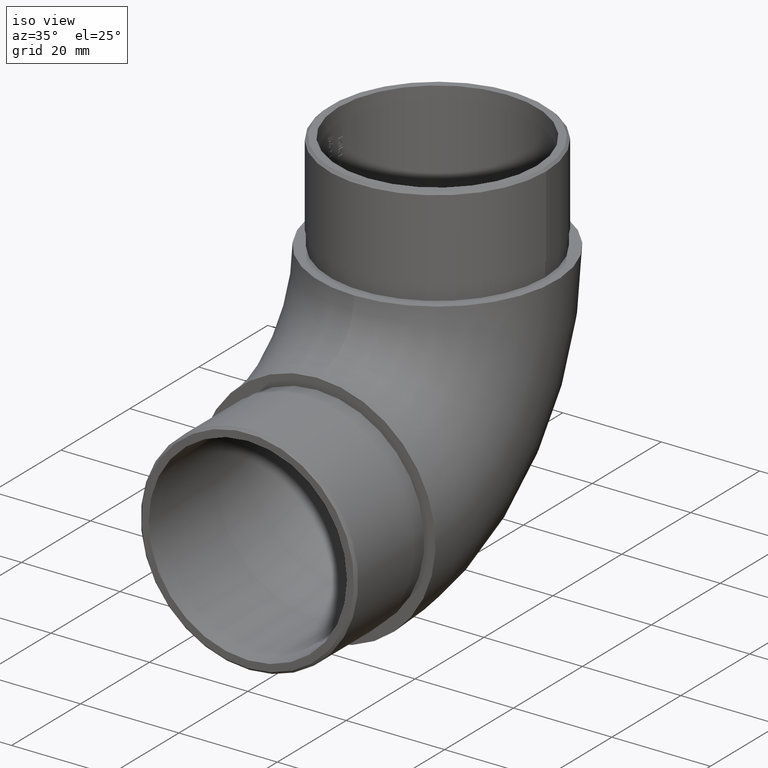
[diagram: clean part render]
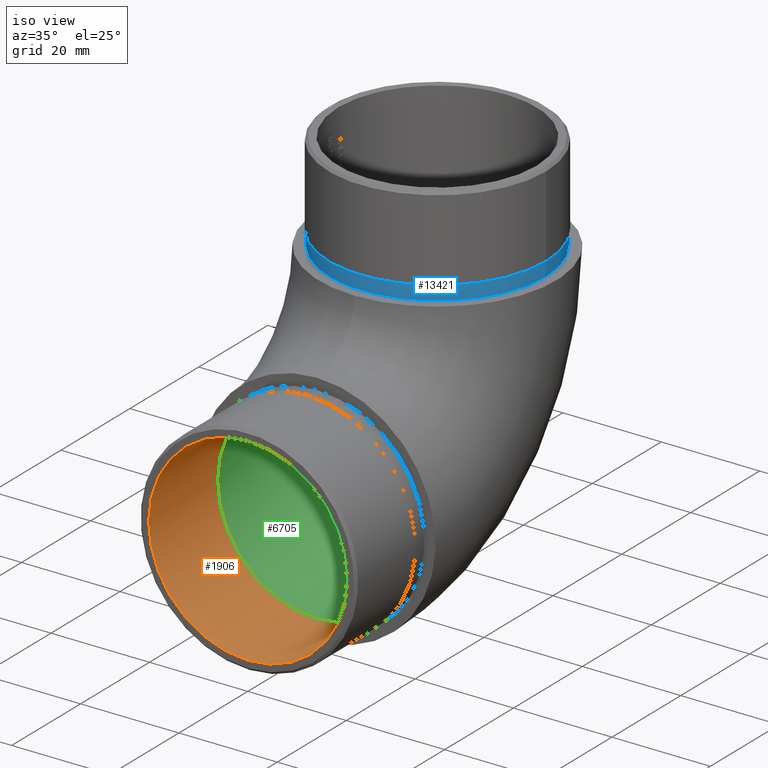
[diagram: same view with three faces highlighted in distinct colors, each labeled with its STEP entity id]
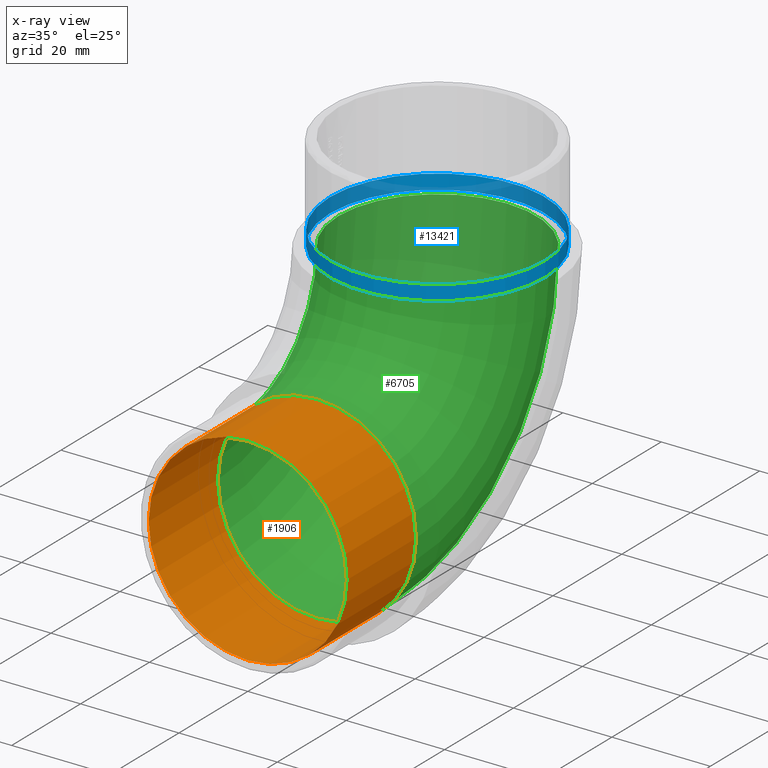
[diagram: x-ray of the same camera — body ghosted, the three highlighted faces saturated]
A machine part, iso view with three faces highlighted in distinct colors.
The next image is the same camera in x-ray (body ghosted, the three faces saturated) — at least one of them is partly hidden behind the body in this view.
Their STEP definitions:

[orange] entity #1906 — the highlighted cylindrical surface (bore or boss wall) has radius 20.15 mm, axis along (-0, 1, -0).
#533 = EDGE_LOOP ( 'NONE', ( #12597 ) ) ;
#1089 = CARTESIAN_POINT ( 'NONE',  ( 0.0000000000000000000, -20.00000000000000000, 24.15000000000000600 ) ) ;
#1906 = ADVANCED_FACE ( 'NONE', ( #12161, #8689 ), #5171, .F. ) ;
#2005 = CARTESIAN_POINT ( 'NONE',  ( 0.0000000000000000000, -6.938893903907228400E-015, 24.15000000000000600 ) ) ;
#2029 = CARTESIAN_POINT ( 'NONE',  ( 0.0000000000000000000, -20.00000000000000000, 4.000000000000003600 ) ) ;
#2417 = DIRECTION ( 'NONE',  ( 0.0000000000000000000, 0.0000000000000000000, 1.000000000000000000 ) ) ;
#2774 = AXIS2_PLACEMENT_3D ( 'NONE', #1089, #4289, #9905 ) ;
#2884 = CIRCLE ( 'NONE', #2774, 20.15000000000000200 ) ;
#4178 = ORIENTED_EDGE ( 'NONE', *, *, #9384, .T. ) ;
#4289 = DIRECTION ( 'NONE',  ( 0.0000000000000000000, -1.000000000000000000, 0.0000000000000000000 ) ) ;
#4378 = AXIS2_PLACEMENT_3D ( 'NONE', #2005, #14238, #9767 ) ;
#4977 = EDGE_CURVE ( 'NONE', #8874, #8874, #2884, .T. ) ;
#5171 = CYLINDRICAL_SURFACE ( 'NONE', #13713, 20.15000000000000200 ) ;
#8185 = VERTEX_POINT ( 'NONE', #8581 ) ;
#8581 = CARTESIAN_POINT ( 'NONE',  ( 0.0000000000000000000, -6.938893903907228400E-015, 44.30000000000000400 ) ) ;
#8689 = FACE_OUTER_BOUND ( 'NONE', #533, .T. ) ;
#8874 = VERTEX_POINT ( 'NONE', #2029 ) ;
#9384 = EDGE_CURVE ( 'NONE', #8185, #8185, #13836, .T. ) ;
#9767 = DIRECTION ( 'NONE',  ( 0.0000000000000000000, 0.0000000000000000000, 1.000000000000000000 ) ) ;
#9905 = DIRECTION ( 'NONE',  ( 0.0000000000000000000, 0.0000000000000000000, -1.000000000000000000 ) ) ;
#10070 = CARTESIAN_POINT ( 'NONE',  ( 0.0000000000000000000, -3.000000000000000000, 24.15000000000000600 ) ) ;
#12161 = FACE_OUTER_BOUND ( 'NONE', #12679, .T. ) ;
#12597 = ORIENTED_EDGE ( 'NONE', *, *, #4977, .T. ) ;
#12679 = EDGE_LOOP ( 'NONE', ( #4178 ) ) ;
#13604 = DIRECTION ( 'NONE',  ( -0.0000000000000000000, 1.000000000000000000, -0.0000000000000000000 ) ) ;
#13713 = AXIS2_PLACEMENT_3D ( 'NONE', #10070, #13604, #2417 ) ;
#13836 = CIRCLE ( 'NONE', #4378, 20.15000000000000200 ) ;
#14238 = DIRECTION ( 'NONE',  ( 0.0000000000000000000, 1.000000000000000000, 0.0000000000000000000 ) ) ;

[blue] entity #13421 — the highlighted cylindrical surface (bore or boss wall) has radius 21.9 mm, axis along (-0, -0, -1).
#737 = DIRECTION ( 'NONE',  ( 0.0000000000000000000, 0.0000000000000000000, 1.000000000000000000 ) ) ;
#898 = DIRECTION ( 'NONE',  ( 0.0000000000000000000, 0.0000000000000000000, 1.000000000000000000 ) ) ;
#1734 = DIRECTION ( 'NONE',  ( -1.000000000000000000, 0.0000000000000000000, 0.0000000000000000000 ) ) ;
#1894 = CARTESIAN_POINT ( 'NONE',  ( 21.90000000000000200, 35.04999999999998300, 62.19999999999999600 ) ) ;
#3835 = CARTESIAN_POINT ( 'NONE',  ( 0.0000000000000000000, 35.04999999999998300, 62.19999999999999600 ) ) ;
#3995 = CYLINDRICAL_SURFACE ( 'NONE', #13785, 21.90000000000000200 ) ;
#4073 = DIRECTION ( 'NONE',  ( 1.000000000000000000, 0.0000000000000000000, 0.0000000000000000000 ) ) ;
#4854 = VERTEX_POINT ( 'NONE', #1894 ) ;
#5406 = CIRCLE ( 'NONE', #10627, 21.90000000000000200 ) ;
#6454 = DIRECTION ( 'NONE',  ( 1.000000000000000000, 0.0000000000000000000, 0.0000000000000000000 ) ) ;
#7576 = EDGE_LOOP ( 'NONE', ( #7940 ) ) ;
#7940 = ORIENTED_EDGE ( 'NONE', *, *, #12293, .F. ) ;
#8238 = AXIS2_PLACEMENT_3D ( 'NONE', #14408, #898, #6454 ) ;
#9234 = ORIENTED_EDGE ( 'NONE', *, *, #10025, .T. ) ;
#9808 = CIRCLE ( 'NONE', #8238, 21.90000000000000200 ) ;
#10025 = EDGE_CURVE ( 'NONE', #13779, #13779, #9808, .T. ) ;
#10579 = DIRECTION ( 'NONE',  ( -0.0000000000000000000, -0.0000000000000000000, -1.000000000000000000 ) ) ;
#10627 = AXIS2_PLACEMENT_3D ( 'NONE', #14107, #737, #4073 ) ;
#10916 = CARTESIAN_POINT ( 'NONE',  ( 21.90000000000000200, 35.04999999999998300, 59.19999999999999600 ) ) ;
#11535 = EDGE_LOOP ( 'NONE', ( #9234 ) ) ;
#12010 = FACE_OUTER_BOUND ( 'NONE', #11535, .T. ) ;
#12293 = EDGE_CURVE ( 'NONE', #4854, #4854, #5406, .T. ) ;
#12737 = FACE_OUTER_BOUND ( 'NONE', #7576, .T. ) ;
#13421 = ADVANCED_FACE ( 'NONE', ( #12737, #12010 ), #3995, .T. ) ;
#13779 = VERTEX_POINT ( 'NONE', #10916 ) ;
#13785 = AXIS2_PLACEMENT_3D ( 'NONE', #3835, #10579, #1734 ) ;
#14107 = CARTESIAN_POINT ( 'NONE',  ( 0.0000000000000000000, 35.04999999999998300, 62.19999999999999600 ) ) ;
#14408 = CARTESIAN_POINT ( 'NONE',  ( 0.0000000000000000000, 35.04999999999998300, 59.19999999999999600 ) ) ;

[green] entity #6705 — the highlighted toroidal blend (fillet) surface has major radius 35.05 mm and minor (blend) radius 20.15 mm.
#909 = CIRCLE ( 'NONE', #5578, 20.15000000000000600 ) ;
#1886 = VERTEX_POINT ( 'NONE', #11974 ) ;
#1903 = CARTESIAN_POINT ( 'NONE',  ( 0.0000000000000000000, -6.938893903907228400E-015, 59.19999999999999600 ) ) ;
#1955 = AXIS2_PLACEMENT_3D ( 'NONE', #1903, #7389, #8524 ) ;
#2005 = CARTESIAN_POINT ( 'NONE',  ( 0.0000000000000000000, -6.938893903907228400E-015, 24.15000000000000600 ) ) ;
#3373 = FACE_OUTER_BOUND ( 'NONE', #14436, .T. ) ;
#4378 = AXIS2_PLACEMENT_3D ( 'NONE', #2005, #14238, #9767 ) ;
#5578 = AXIS2_PLACEMENT_3D ( 'NONE', #10352, #9294, #9337 ) ;
#6705 = ADVANCED_FACE ( 'NONE', ( #3373, #11371 ), #7741, .F. ) ;
#7389 = DIRECTION ( 'NONE',  ( -1.000000000000000000, -0.0000000000000000000, -0.0000000000000000000 ) ) ;
#7741 = TOROIDAL_SURFACE ( 'NONE', #1955, 35.04999999999999000, 20.15000000000000600 ) ;
#8185 = VERTEX_POINT ( 'NONE', #8581 ) ;
#8524 = DIRECTION ( 'NONE',  ( 0.0000000000000000000, 0.0000000000000000000, 1.000000000000000000 ) ) ;
#8581 = CARTESIAN_POINT ( 'NONE',  ( 0.0000000000000000000, -6.938893903907228400E-015, 44.30000000000000400 ) ) ;
#9064 = EDGE_CURVE ( 'NONE', #1886, #1886, #909, .T. ) ;
#9294 = DIRECTION ( 'NONE',  ( 0.0000000000000000000, 2.832769448823989800E-016, 1.000000000000000000 ) ) ;
#9337 = DIRECTION ( 'NONE',  ( 0.0000000000000000000, -1.000000000000000000, 3.443619803427904100E-016 ) ) ;
#9384 = EDGE_CURVE ( 'NONE', #8185, #8185, #13836, .T. ) ;
#9767 = DIRECTION ( 'NONE',  ( 0.0000000000000000000, 0.0000000000000000000, 1.000000000000000000 ) ) ;
#10352 = CARTESIAN_POINT ( 'NONE',  ( 0.0000000000000000000, 35.04999999999998300, 59.19999999999998900 ) ) ;
#10773 = ORIENTED_EDGE ( 'NONE', *, *, #9064, .T. ) ;
#11306 = ORIENTED_EDGE ( 'NONE', *, *, #9384, .F. ) ;
#11371 = FACE_OUTER_BOUND ( 'NONE', #12889, .T. ) ;
#11974 = CARTESIAN_POINT ( 'NONE',  ( 0.0000000000000000000, 14.89999999999997900, 59.19999999999999600 ) ) ;
#12889 = EDGE_LOOP ( 'NONE', ( #11306 ) ) ;
#13836 = CIRCLE ( 'NONE', #4378, 20.15000000000000200 ) ;
#14238 = DIRECTION ( 'NONE',  ( 0.0000000000000000000, 1.000000000000000000, 0.0000000000000000000 ) ) ;
#14436 = EDGE_LOOP ( 'NONE', ( #10773 ) ) ;